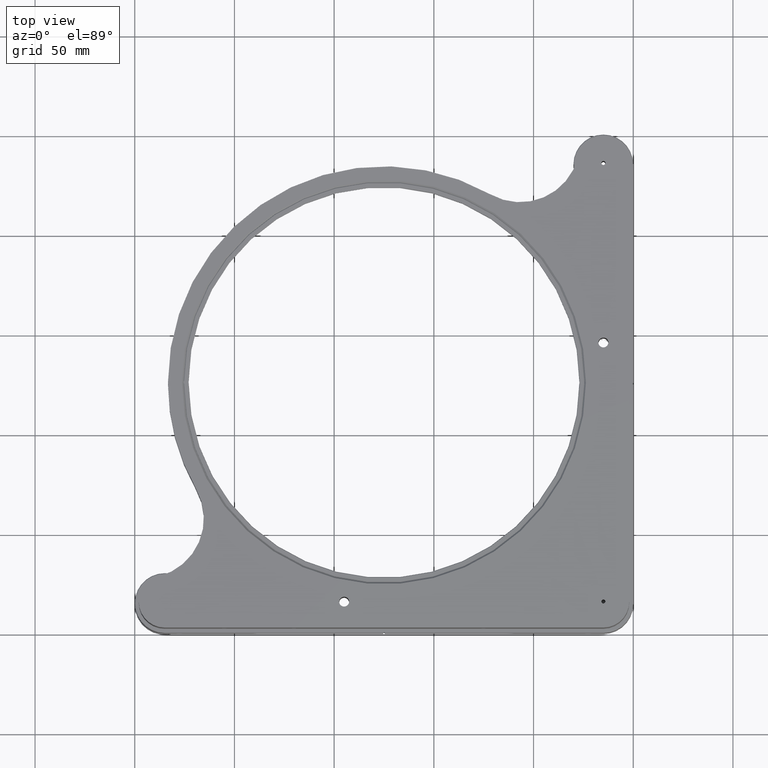
[diagram: clean part render]
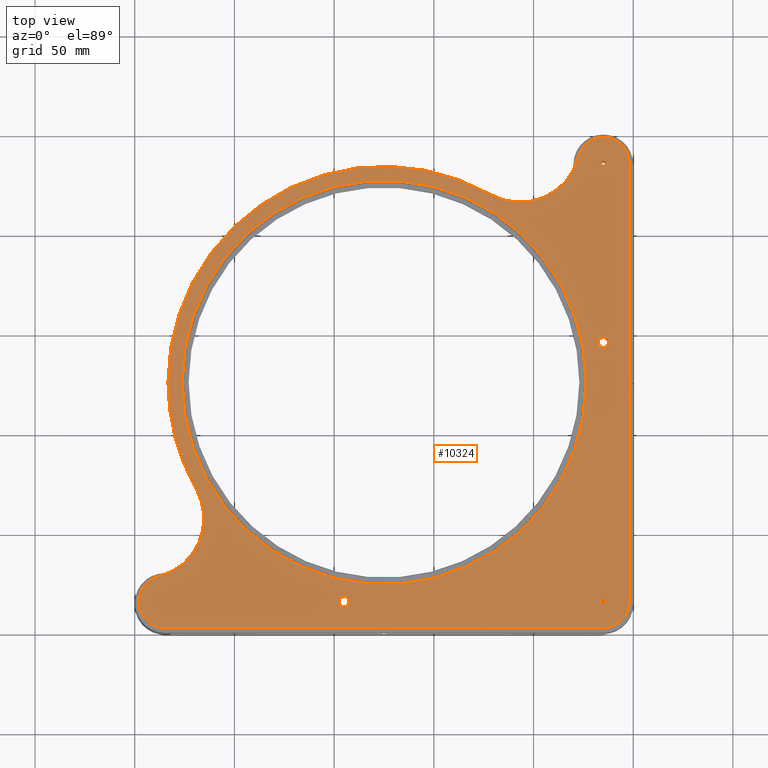
[diagram: same view with one face highlighted and labeled with its STEP entity id]
A machine part, top view. The second image highlights one B-rep face of the part: STEP entity #10324.
In plain terms, the highlighted planar face has unit normal (0, 0, 1).
Its self-contained STEP definition (entity closure, byte-faithful):
#154 = VERTEX_POINT ( 'NONE', #4779 ) ;
#223 = DIRECTION ( 'NONE',  ( 1.000000000000000000, 0.000000000000000000, 0.000000000000000000 ) ) ;
#272 = ORIENTED_EDGE ( 'NONE', *, *, #573, .T. ) ;
#297 = AXIS2_PLACEMENT_3D ( 'NONE', #9460, #2861, #974 ) ;
#392 = VERTEX_POINT ( 'NONE', #726 ) ;
#550 = EDGE_LOOP ( 'NONE', ( #2657, #9453 ) ) ;
#573 = EDGE_CURVE ( 'NONE', #4655, #1852, #12104, .T. ) ;
#592 = DIRECTION ( 'NONE',  ( 1.000000000000000000, 0.000000000000000000, 0.000000000000000000 ) ) ;
#603 = FACE_BOUND ( 'NONE', #550, .T. ) ;
#665 = CARTESIAN_POINT ( 'NONE',  ( -144.9999999999986073, 15.00000000000015277, 58.47056274847703605 ) ) ;
#669 = CARTESIAN_POINT ( 'NONE',  ( -124.9999999999987352, 124.9999999999990905, 58.47056274847702184 ) ) ;
#670 = ORIENTED_EDGE ( 'NONE', *, *, #3096, .T. ) ;
#726 = CARTESIAN_POINT ( 'NONE',  ( -226.2499999999979252, 124.9999999999990905, 58.47056274847702184 ) ) ;
#782 = CARTESIAN_POINT ( 'NONE',  ( -147.4999999999985789, 15.00000000000015632, 58.47056274847703605 ) ) ;
#811 = AXIS2_PLACEMENT_3D ( 'NONE', #1955, #9378, #10497 ) ;
#837 = VERTEX_POINT ( 'NONE', #8336 ) ;
#852 = CARTESIAN_POINT ( 'NONE',  ( -23.74999999999954881, 124.9999999999990905, 58.47056274847702184 ) ) ;
#880 = VERTEX_POINT ( 'NONE', #6395 ) ;
#915 = VECTOR ( 'NONE', #10310, 1000.000000000000000 ) ;
#974 = DIRECTION ( 'NONE',  ( 1.000000000000000000, 0.000000000000000000, 0.000000000000000000 ) ) ;
#1144 = DIRECTION ( 'NONE',  ( 1.000000000000000000, 0.000000000000000000, 0.000000000000000000 ) ) ;
#1170 = CIRCLE ( 'NONE', #8613, 108.3499999999991843 ) ;
#1175 = ORIENTED_EDGE ( 'NONE', *, *, #1958, .T. ) ;
#1192 = DIRECTION ( 'NONE',  ( -5.029013959943429289E-30, -1.224646799147301438E-16, -1.000000000000000000 ) ) ;
#1265 = DIRECTION ( 'NONE',  ( 5.029013959943429289E-30, 1.224646799147301438E-16, 1.000000000000000000 ) ) ;
#1418 = DIRECTION ( 'NONE',  ( 5.029013959943429289E-30, 1.224646799147301438E-16, 1.000000000000000000 ) ) ;
#1420 = ORIENTED_EDGE ( 'NONE', *, *, #12168, .F. ) ;
#1451 = CIRCLE ( 'NONE', #3469, 2.499999999999974243 ) ;
#1486 = DIRECTION ( 'NONE',  ( 1.000000000000000000, 5.551115123125783935E-17, -4.779362060831878457E-30 ) ) ;
#1493 = EDGE_LOOP ( 'NONE', ( #1992, #2049, #3402, #9545, #4081, #272, #3729, #8791, #1175, #1420 ) ) ;
#1524 = DIRECTION ( 'NONE',  ( 1.000000000000000000, 0.000000000000000000, 0.000000000000000000 ) ) ;
#1570 = LINE ( 'NONE', #5310, #915 ) ;
#1576 = CARTESIAN_POINT ( 'NONE',  ( -219.2434441480177725, 71.54070955278967858, 58.47056274847704316 ) ) ;
#1604 = DIRECTION ( 'NONE',  ( 1.000000000000000000, 0.000000000000000000, 0.000000000000000000 ) ) ;
#1671 = DIRECTION ( 'NONE',  ( 5.029013959943429289E-30, 1.224646799147301438E-16, 1.000000000000000000 ) ) ;
#1736 = CARTESIAN_POINT ( 'NONE',  ( -71.54070955278882593, 219.2434441480173462, 58.47056274847700763 ) ) ;
#1843 = CIRCLE ( 'NONE', #8079, 12.99999999999992895 ) ;
#1852 = VERTEX_POINT ( 'NONE', #7015 ) ;
#1955 = CARTESIAN_POINT ( 'NONE',  ( -15.00000000000013856, 14.99999999999968026, 58.47056274847703605 ) ) ;
#1958 = EDGE_CURVE ( 'NONE', #6530, #880, #5139, .T. ) ;
#1992 = ORIENTED_EDGE ( 'NONE', *, *, #4018, .T. ) ;
#2040 = DIRECTION ( 'NONE',  ( 1.000000000000000000, 0.000000000000000000, 0.000000000000000000 ) ) ;
#2049 = ORIENTED_EDGE ( 'NONE', *, *, #8552, .T. ) ;
#2251 = DIRECTION ( 'NONE',  ( 5.029013959943429289E-30, 1.224646799147301438E-16, 1.000000000000000000 ) ) ;
#2316 = AXIS2_PLACEMENT_3D ( 'NONE', #2987, #10640, #2040 ) ;
#2448 = AXIS2_PLACEMENT_3D ( 'NONE', #8005, #1192, #6065 ) ;
#2564 = FACE_BOUND ( 'NONE', #9855, .T. ) ;
#2576 = VERTEX_POINT ( 'NONE', #10266 ) ;
#2622 = CIRCLE ( 'NONE', #811, 0.9999999999999904521 ) ;
#2657 = ORIENTED_EDGE ( 'NONE', *, *, #7967, .T. ) ;
#2720 = VERTEX_POINT ( 'NONE', #2738 ) ;
#2738 = CARTESIAN_POINT ( 'NONE',  ( -142.4999999999986358, 15.00000000000015632, 58.47056274847703605 ) ) ;
#2754 = CIRCLE ( 'NONE', #3754, 29.99999999999974065 ) ;
#2861 = DIRECTION ( 'NONE',  ( 5.029013959943429289E-30, 1.224646799147301438E-16, 1.000000000000000000 ) ) ;
#2934 = CIRCLE ( 'NONE', #11953, 108.3499999999991843 ) ;
#2947 = EDGE_CURVE ( 'NONE', #3008, #4655, #10044, .T. ) ;
#2987 = CARTESIAN_POINT ( 'NONE',  ( -14.99999999999966604, 234.9999999999982379, 58.47056274847700763 ) ) ;
#3008 = VERTEX_POINT ( 'NONE', #1576 ) ;
#3096 = EDGE_CURVE ( 'NONE', #3445, #8846, #2622, .T. ) ;
#3121 = CARTESIAN_POINT ( 'NONE',  ( -14.99999999999966604, 144.9999999999991758, 58.47056274847745527 ) ) ;
#3229 = DIRECTION ( 'NONE',  ( 5.029013959943429289E-30, 1.224646799147301438E-16, 1.000000000000000000 ) ) ;
#3252 = VERTEX_POINT ( 'NONE', #7056 ) ;
#3275 = DIRECTION ( 'NONE',  ( 5.029013959943429289E-30, 1.224646799147301438E-16, 1.000000000000000000 ) ) ;
#3279 = DIRECTION ( 'NONE',  ( 1.000000000000000000, 0.000000000000000000, 0.000000000000000000 ) ) ;
#3402 = ORIENTED_EDGE ( 'NONE', *, *, #6969, .T. ) ;
#3436 = CARTESIAN_POINT ( 'NONE',  ( -14.99999999999966604, 234.9999999999982379, 58.47056274847700763 ) ) ;
#3437 = CARTESIAN_POINT ( 'NONE',  ( -12.49999999999967670, 144.9999999999991758, 58.47056274847745527 ) ) ;
#3445 = VERTEX_POINT ( 'NONE', #6105 ) ;
#3469 = AXIS2_PLACEMENT_3D ( 'NONE', #665, #1418, #1604 ) ;
#3472 = DIRECTION ( 'NONE',  ( 5.029013959943429289E-30, 1.224646799147301438E-16, 1.000000000000000000 ) ) ;
#3502 = CARTESIAN_POINT ( 'NONE',  ( -238.1253252213248004, 27.61872981963507812, 58.47056274847703605 ) ) ;
#3674 = VERTEX_POINT ( 'NONE', #3437 ) ;
#3729 = ORIENTED_EDGE ( 'NONE', *, *, #3763, .T. ) ;
#3754 = AXIS2_PLACEMENT_3D ( 'NONE', #5340, #9155, #11205 ) ;
#3763 = EDGE_CURVE ( 'NONE', #1852, #5107, #4452, .T. ) ;
#4018 = EDGE_CURVE ( 'NONE', #837, #2576, #1843, .T. ) ;
#4081 = ORIENTED_EDGE ( 'NONE', *, *, #2947, .T. ) ;
#4155 = DIRECTION ( 'NONE',  ( 1.000000000000000000, 0.000000000000000000, 0.000000000000000000 ) ) ;
#4211 = EDGE_CURVE ( 'NONE', #8846, #3445, #8481, .T. ) ;
#4368 = CARTESIAN_POINT ( 'NONE',  ( -15.00000000000013856, 14.99999999999968026, 58.47056274847703605 ) ) ;
#4452 = CIRCLE ( 'NONE', #5271, 12.99999999999992895 ) ;
#4569 = CARTESIAN_POINT ( 'NONE',  ( -124.9999999999987352, 124.9999999999990905, 58.47056274847702184 ) ) ;
#4655 = VERTEX_POINT ( 'NONE', #3502 ) ;
#4731 = EDGE_CURVE ( 'NONE', #2720, #11273, #1451, .T. ) ;
#4757 = ORIENTED_EDGE ( 'NONE', *, *, #4211, .T. ) ;
#4779 = CARTESIAN_POINT ( 'NONE',  ( -233.3499999999987722, 124.9999999999990905, 58.47056274847702184 ) ) ;
#5107 = VERTEX_POINT ( 'NONE', #10898 ) ;
#5139 = CIRCLE ( 'NONE', #12135, 12.99999999999990052 ) ;
#5143 = AXIS2_PLACEMENT_3D ( 'NONE', #9856, #10918, #5235 ) ;
#5235 = DIRECTION ( 'NONE',  ( 1.000000000000000000, 0.000000000000000000, 0.000000000000000000 ) ) ;
#5270 = VERTEX_POINT ( 'NONE', #1736 ) ;
#5271 = AXIS2_PLACEMENT_3D ( 'NONE', #11212, #1671, #12229 ) ;
#5310 = CARTESIAN_POINT ( 'NONE',  ( -2.000000000000126565, 1.999999999999682476, 58.47056274847703605 ) ) ;
#5313 = DIRECTION ( 'NONE',  ( 1.000000000000000000, 0.000000000000000000, 0.000000000000000000 ) ) ;
#5340 = CARTESIAN_POINT ( 'NONE',  ( -56.73887555725348619, 245.3376141936156216, 58.47056274847700763 ) ) ;
#5710 = VERTEX_POINT ( 'NONE', #12142 ) ;
#5746 = VECTOR ( 'NONE', #7053, 1000.000000000000000 ) ;
#5950 = CIRCLE ( 'NONE', #297, 2.499999999999974243 ) ;
#6065 = DIRECTION ( 'NONE',  ( 1.000000000000000000, -1.734723475976823660E-15, 0.000000000000000000 ) ) ;
#6105 = CARTESIAN_POINT ( 'NONE',  ( -16.00000000000013500, 14.99999999999967848, 58.47056274847703605 ) ) ;
#6119 = AXIS2_PLACEMENT_3D ( 'NONE', #10643, #12419, #8718 ) ;
#6211 = EDGE_CURVE ( 'NONE', #6530, #5107, #11806, .T. ) ;
#6281 = EDGE_CURVE ( 'NONE', #392, #10487, #10127, .T. ) ;
#6313 = CARTESIAN_POINT ( 'NONE',  ( -124.9999999999987352, 124.9999999999990905, 58.47056274847702184 ) ) ;
#6358 = FACE_OUTER_BOUND ( 'NONE', #1493, .T. ) ;
#6395 = CARTESIAN_POINT ( 'NONE',  ( -2.000000000000126565, 14.99999999999968026, 58.47056274847703605 ) ) ;
#6530 = VERTEX_POINT ( 'NONE', #9726 ) ;
#6762 = ORIENTED_EDGE ( 'NONE', *, *, #10557, .F. ) ;
#6908 = DIRECTION ( 'NONE',  ( 5.029013959943429289E-30, 1.224646799147301438E-16, 1.000000000000000000 ) ) ;
#6969 = EDGE_CURVE ( 'NONE', #5270, #154, #2934, .T. ) ;
#7015 = CARTESIAN_POINT ( 'NONE',  ( -247.9999999999986358, 15.00000000000017586, 58.47056274847703605 ) ) ;
#7053 = DIRECTION ( 'NONE',  ( -1.000000000000000000, -2.706706521276047489E-16, 4.805711500239763906E-30 ) ) ;
#7056 = CARTESIAN_POINT ( 'NONE',  ( -17.49999999999965539, 144.9999999999991758, 58.47056274847745527 ) ) ;
#7142 = AXIS2_PLACEMENT_3D ( 'NONE', #12144, #3472, #1524 ) ;
#7153 = DIRECTION ( 'NONE',  ( 1.000000000000000000, 0.000000000000000000, 0.000000000000000000 ) ) ;
#7172 = FACE_BOUND ( 'NONE', #11021, .T. ) ;
#7506 = ORIENTED_EDGE ( 'NONE', *, *, #8583, .T. ) ;
#7967 = EDGE_CURVE ( 'NONE', #11429, #5710, #11287, .T. ) ;
#8005 = CARTESIAN_POINT ( 'NONE',  ( -15.00000000000013856, 14.99999999999968026, 58.47056274847703605 ) ) ;
#8032 = CARTESIAN_POINT ( 'NONE',  ( -14.99999999999966604, 234.9999999999982379, 58.47056274847700763 ) ) ;
#8079 = AXIS2_PLACEMENT_3D ( 'NONE', #8032, #3229, #7153 ) ;
#8289 = DIRECTION ( 'NONE',  ( -5.029013959943429289E-30, -1.224646799147301438E-16, -1.000000000000000000 ) ) ;
#8293 = FACE_BOUND ( 'NONE', #10857, .T. ) ;
#8336 = CARTESIAN_POINT ( 'NONE',  ( -1.999999999999640954, 234.9999999999982379, 58.47056274847700763 ) ) ;
#8481 = CIRCLE ( 'NONE', #2448, 0.9999999999999904521 ) ;
#8552 = EDGE_CURVE ( 'NONE', #2576, #5270, #2754, .T. ) ;
#8583 = EDGE_CURVE ( 'NONE', #10487, #392, #9571, .T. ) ;
#8613 = AXIS2_PLACEMENT_3D ( 'NONE', #10728, #2251, #4155 ) ;
#8623 = AXIS2_PLACEMENT_3D ( 'NONE', #3121, #6908, #223 ) ;
#8718 = DIRECTION ( 'NONE',  ( 1.000000000000000000, 0.000000000000000000, 0.000000000000000000 ) ) ;
#8791 = ORIENTED_EDGE ( 'NONE', *, *, #6211, .F. ) ;
#8846 = VERTEX_POINT ( 'NONE', #9072 ) ;
#8862 = CARTESIAN_POINT ( 'NONE',  ( -259.9999999999968736, 2.000000000000001776, 58.47056274847703605 ) ) ;
#9072 = CARTESIAN_POINT ( 'NONE',  ( -14.00000000000014033, 14.99999999999967848, 58.47056274847703605 ) ) ;
#9155 = DIRECTION ( 'NONE',  ( -5.029013959943429289E-30, -1.224646799147301438E-16, -1.000000000000000000 ) ) ;
#9355 = FACE_BOUND ( 'NONE', #11289, .T. ) ;
#9378 = DIRECTION ( 'NONE',  ( -5.029013959943429289E-30, -1.224646799147301438E-16, -1.000000000000000000 ) ) ;
#9450 = AXIS2_PLACEMENT_3D ( 'NONE', #11624, #9760, #1144 ) ;
#9453 = ORIENTED_EDGE ( 'NONE', *, *, #11522, .T. ) ;
#9460 = CARTESIAN_POINT ( 'NONE',  ( -144.9999999999986073, 15.00000000000015277, 58.47056274847703605 ) ) ;
#9545 = ORIENTED_EDGE ( 'NONE', *, *, #10236, .T. ) ;
#9569 = ORIENTED_EDGE ( 'NONE', *, *, #11454, .F. ) ;
#9571 = CIRCLE ( 'NONE', #10166, 101.2499999999992042 ) ;
#9726 = CARTESIAN_POINT ( 'NONE',  ( -15.00000000000013856, 2.000000000000140332, 58.47056274847703605 ) ) ;
#9760 = DIRECTION ( 'NONE',  ( -5.029013959943429289E-30, -1.224646799147301438E-16, -1.000000000000000000 ) ) ;
#9855 = EDGE_LOOP ( 'NONE', ( #7506, #11821 ) ) ;
#9856 = CARTESIAN_POINT ( 'NONE',  ( -124.9999999999987352, 124.9999999999990905, 58.47056274847702184 ) ) ;
#10044 = CIRCLE ( 'NONE', #9450, 29.99999999999974776 ) ;
#10127 = CIRCLE ( 'NONE', #5143, 101.2499999999992042 ) ;
#10131 = CIRCLE ( 'NONE', #2316, 0.9999999999999904521 ) ;
#10166 = AXIS2_PLACEMENT_3D ( 'NONE', #4569, #11075, #592 ) ;
#10236 = EDGE_CURVE ( 'NONE', #154, #3008, #1170, .T. ) ;
#10266 = CARTESIAN_POINT ( 'NONE',  ( -27.61872981963463403, 238.1253252213244878, 58.47056274847700763 ) ) ;
#10310 = DIRECTION ( 'NONE',  ( 1.721276007170807843E-18, -1.000000000000000000, 1.224646799147298233E-16 ) ) ;
#10324 = ADVANCED_FACE ( 'NONE', ( #8293, #603, #9355, #7172, #2564, #6358 ), #11923, .T. ) ;
#10487 = VERTEX_POINT ( 'NONE', #852 ) ;
#10497 = DIRECTION ( 'NONE',  ( 1.000000000000000000, 1.734723475976823660E-15, 0.000000000000000000 ) ) ;
#10523 = CARTESIAN_POINT ( 'NONE',  ( -15.99999999999966427, 234.9999999999982379, 58.47056274847700763 ) ) ;
#10557 = EDGE_CURVE ( 'NONE', #3252, #3674, #10804, .T. ) ;
#10562 = ORIENTED_EDGE ( 'NONE', *, *, #4731, .F. ) ;
#10640 = DIRECTION ( 'NONE',  ( -5.029013959943429289E-30, -1.224646799147301438E-16, -1.000000000000000000 ) ) ;
#10643 = CARTESIAN_POINT ( 'NONE',  ( -234.9999999999986073, 15.00000000000017941, 58.47056274847703605 ) ) ;
#10728 = CARTESIAN_POINT ( 'NONE',  ( -124.9999999999987352, 124.9999999999990905, 58.47056274847702184 ) ) ;
#10804 = CIRCLE ( 'NONE', #8623, 2.499999999999971134 ) ;
#10857 = EDGE_LOOP ( 'NONE', ( #670, #4757 ) ) ;
#10898 = CARTESIAN_POINT ( 'NONE',  ( -234.9999999999986073, 2.000000000000168310, 58.47056274847703605 ) ) ;
#10918 = DIRECTION ( 'NONE',  ( -5.029013959943429289E-30, -1.224646799147301438E-16, -1.000000000000000000 ) ) ;
#10949 = ORIENTED_EDGE ( 'NONE', *, *, #11712, .F. ) ;
#11021 = EDGE_LOOP ( 'NONE', ( #6762, #10949 ) ) ;
#11075 = DIRECTION ( 'NONE',  ( -5.029013959943429289E-30, -1.224646799147301438E-16, -1.000000000000000000 ) ) ;
#11086 = DIRECTION ( 'NONE',  ( 1.000000000000000000, 0.000000000000000000, 0.000000000000000000 ) ) ;
#11127 = CIRCLE ( 'NONE', #7142, 2.499999999999971134 ) ;
#11205 = DIRECTION ( 'NONE',  ( 1.000000000000000000, 0.000000000000000000, 0.000000000000000000 ) ) ;
#11212 = CARTESIAN_POINT ( 'NONE',  ( -234.9999999999986073, 15.00000000000017941, 58.47056274847703605 ) ) ;
#11273 = VERTEX_POINT ( 'NONE', #782 ) ;
#11287 = CIRCLE ( 'NONE', #11495, 0.9999999999999904521 ) ;
#11289 = EDGE_LOOP ( 'NONE', ( #9569, #10562 ) ) ;
#11429 = VERTEX_POINT ( 'NONE', #10523 ) ;
#11454 = EDGE_CURVE ( 'NONE', #11273, #2720, #5950, .T. ) ;
#11495 = AXIS2_PLACEMENT_3D ( 'NONE', #3436, #8289, #11086 ) ;
#11522 = EDGE_CURVE ( 'NONE', #5710, #11429, #10131, .T. ) ;
#11592 = AXIS2_PLACEMENT_3D ( 'NONE', #669, #12042, #1486 ) ;
#11624 = CARTESIAN_POINT ( 'NONE',  ( -245.3376141936160479, 56.73887555725402621, 58.47056274847704316 ) ) ;
#11712 = EDGE_CURVE ( 'NONE', #3674, #3252, #11127, .T. ) ;
#11806 = LINE ( 'NONE', #8862, #5746 ) ;
#11821 = ORIENTED_EDGE ( 'NONE', *, *, #6281, .T. ) ;
#11923 = PLANE ( 'NONE',  #11592 ) ;
#11953 = AXIS2_PLACEMENT_3D ( 'NONE', #6313, #3275, #5313 ) ;
#12042 = DIRECTION ( 'NONE',  ( 4.772563905464644011E-30, 1.224646799147301438E-16, 1.000000000000000000 ) ) ;
#12104 = CIRCLE ( 'NONE', #6119, 12.99999999999992895 ) ;
#12135 = AXIS2_PLACEMENT_3D ( 'NONE', #4368, #1265, #3279 ) ;
#12142 = CARTESIAN_POINT ( 'NONE',  ( -13.99999999999966960, 234.9999999999982379, 58.47056274847700763 ) ) ;
#12144 = CARTESIAN_POINT ( 'NONE',  ( -14.99999999999966604, 144.9999999999991758, 58.47056274847745527 ) ) ;
#12168 = EDGE_CURVE ( 'NONE', #837, #880, #1570, .T. ) ;
#12229 = DIRECTION ( 'NONE',  ( 1.000000000000000000, 0.000000000000000000, 0.000000000000000000 ) ) ;
#12419 = DIRECTION ( 'NONE',  ( 5.029013959943429289E-30, 1.224646799147301438E-16, 1.000000000000000000 ) ) ;